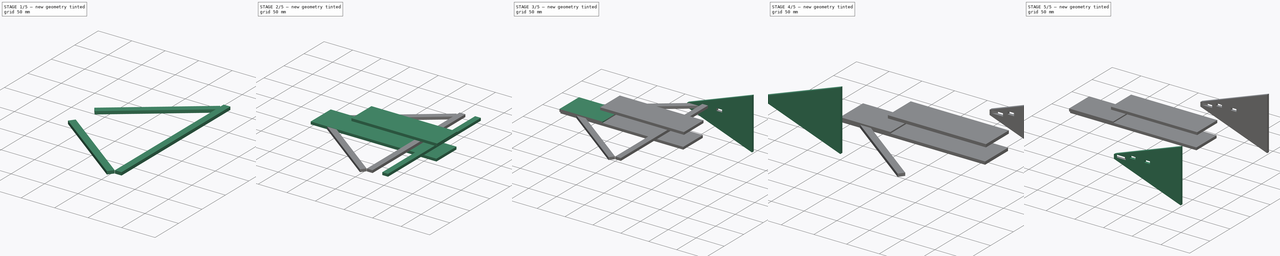
[diagram: build sequence overview — one tinted view per stage of 5, left to right]
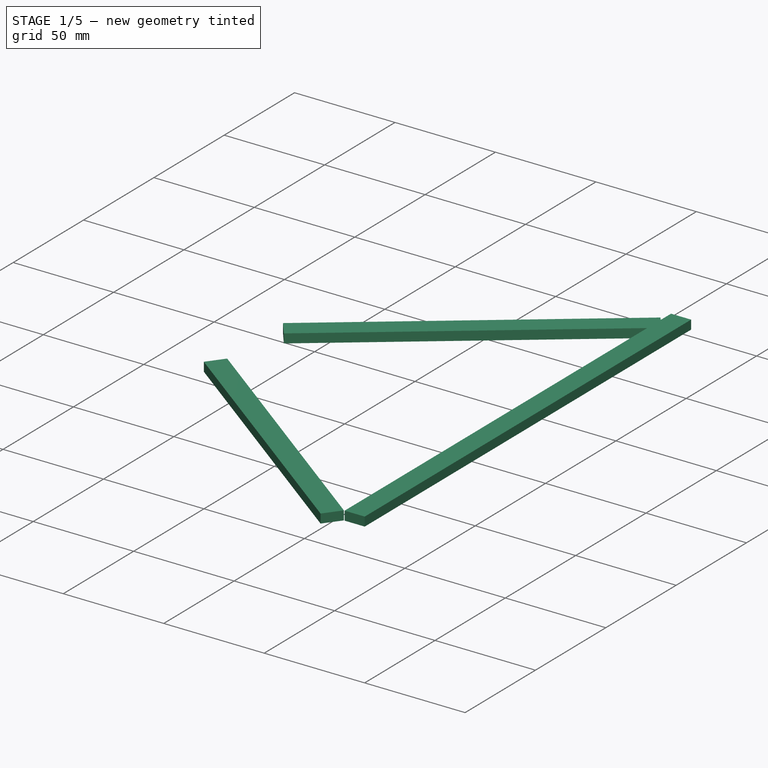
[diagram: stage 1 of 5 — iso view after this stage's code; geometry added in this stage tinted green]
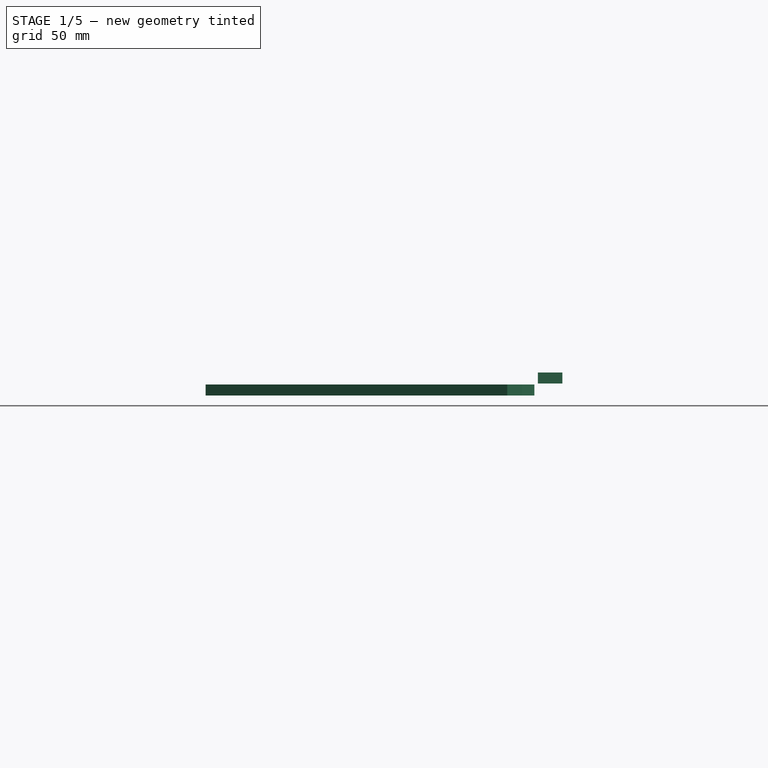
[diagram: stage 1 of 5 — front view after this stage's code; geometry added in this stage tinted green]
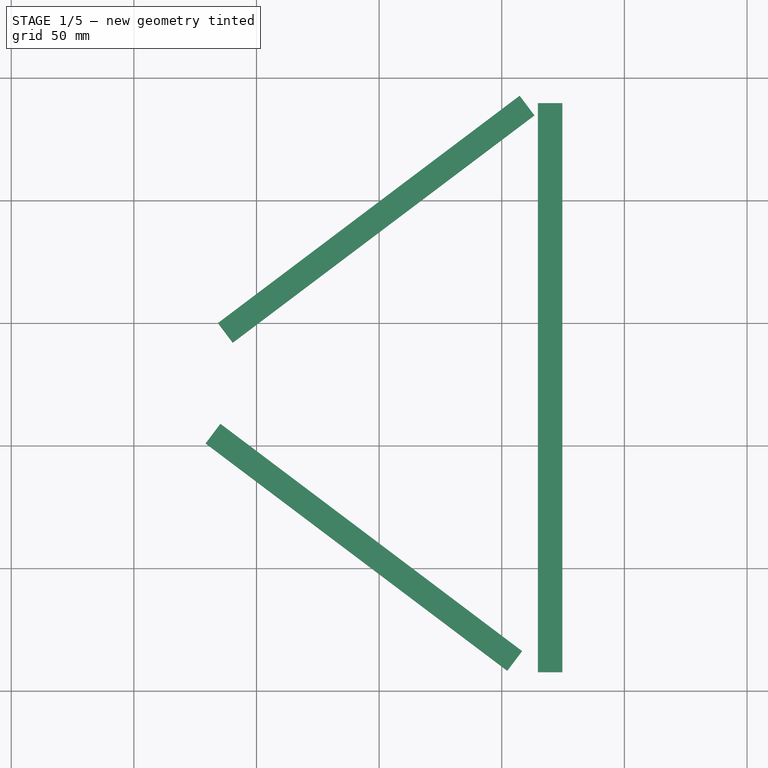
[diagram: stage 1 of 5 — top view after this stage's code; geometry added in this stage tinted green]
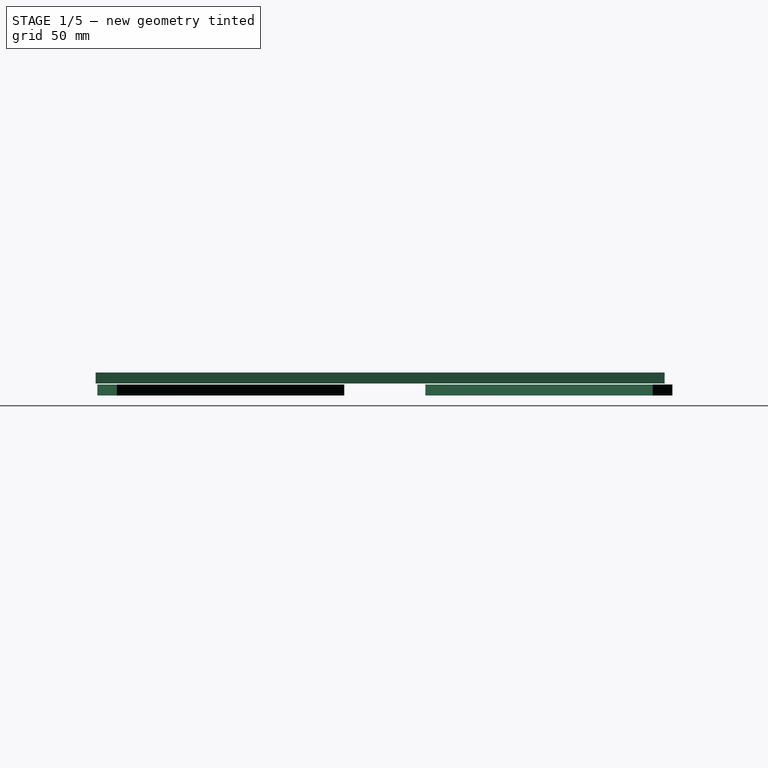
[diagram: stage 1 of 5 — right view after this stage's code; geometry added in this stage tinted green]
FCSTD DOCUMENT  (FreeCAD 0.20R29410 (Git))
Label: wingtest3
License: All rights reserved
LicenseURL: http://en.wikipedia.org/wiki/All_rights_reserved
objects: Part::Cut×36, Part::Part2DObjectPython×19, Part::FeaturePython×10, Part::Box×7, Sketcher::SketchObject×2, PartDesign::Pad×2, PartDesign::Body×2
note: 80 computed .brp shape members not serialized (recipe doc carries the construction recipe); baked Part::Feature solids carry a one-line shape summary decoded from their .brp

FEATURE [Part::Box] Box001  label="Cube001"
  AttacherType = Attacher::AttachEngine3D
  Height = 4.5
  Length = 10
  Placement = pos=(164.7,-92.4,2.5) rot=(0,0,1;0rad)
  Width = 232
FEATURE [Part::Box] Box005  label="left front spar"
  AttacherType = Attacher::AttachEngine3D
  Height = 4.5
  Length = 10
  Placement = pos=(152.247,-91.7224,-2.4) rot=(0,0,1;0.925025rad)
  Width = 154
FEATURE [Part::Box] Box006  label="front spar001"
  AttacherType = Attacher::AttachEngine3D
  Height = 4.5
  Length = 10
  Placement = pos=(34.2878,50.0325,-2.4) rot=(0,0,1;-0.925025rad)
  Width = 154
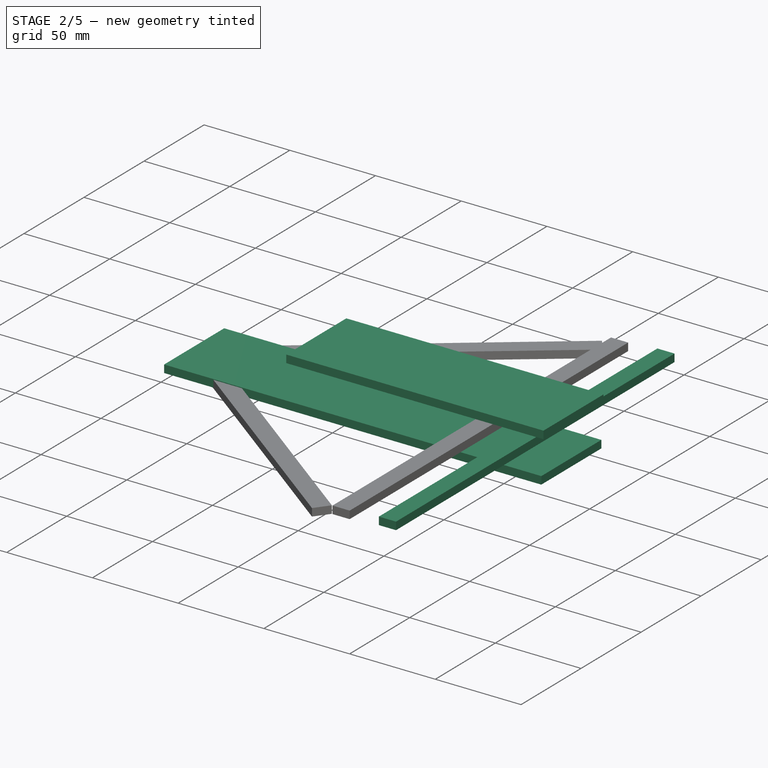
[diagram: stage 2 of 5 — iso view after this stage's code; geometry added in this stage tinted green]
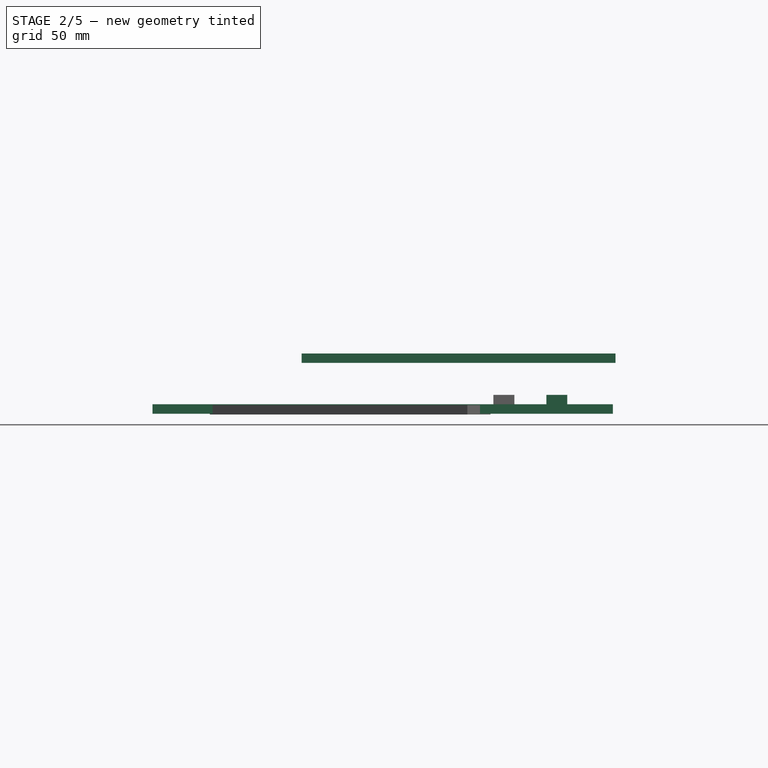
[diagram: stage 2 of 5 — front view after this stage's code; geometry added in this stage tinted green]
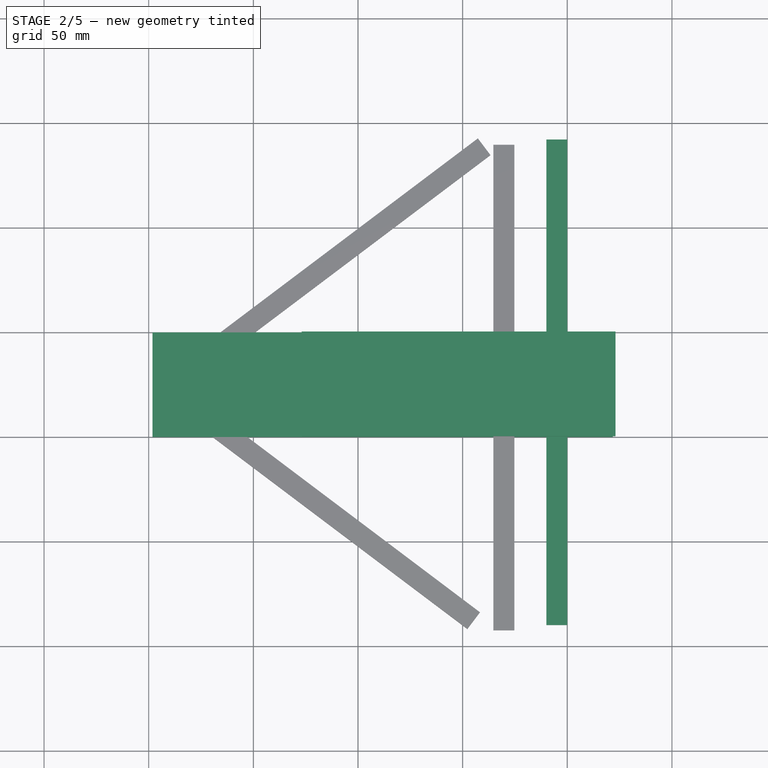
[diagram: stage 2 of 5 — top view after this stage's code; geometry added in this stage tinted green]
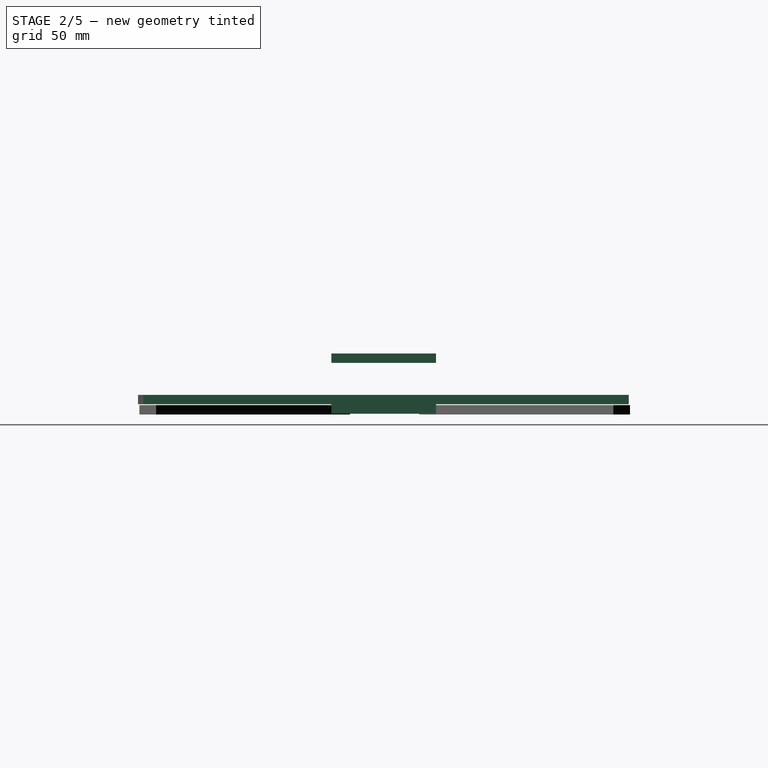
[diagram: stage 2 of 5 — right view after this stage's code; geometry added in this stage tinted green]
FEATURE [Part::FeaturePython] wrib  # WARN: FeaturePython — macro-defined, semantics opaque (R4)
  Chord = 250
  Coordinates = (101) [(1,0,-2.06341e-17),(0.999037,0,0.000309021),(0.996151,0,0.00123227),(0.991352,0,0.0027584),(0.984655,0,0.00486873),(0.976083,0,0.0075377),+95 more]
  NacaNbrPoint = 50
  NacaProfil = 4415
  RibProfil = 24112
  Thickness = 0
  finite_TE = false
  splitSpline = true
  useSpline = true
  wingkey = 0
FEATURE [Part::FeaturePython] wrib001  # WARN: FeaturePython — macro-defined, semantics opaque (R4)
  Chord = 250
  Coordinates = (101) [(1,0,-2.06341e-17),(0.999037,0,0.000309021),(0.996151,0,0.00123227),(0.991352,0,0.0027584),(0.984655,0,0.00486873),(0.976083,0,0.0075377),+95 more]
  NacaNbrPoint = 50
  NacaProfil = 4415
  Placement = pos=(0,50,0) rot=(1,0,0;0rad)
  RibProfil = 4415
  Thickness = 0
  finite_TE = false
  splitSpline = true
  useSpline = true
  wingkey = 0
FEATURE [Part::FeaturePython] wrib002  # WARN: FeaturePython — macro-defined, semantics opaque (R4)
  Chord = 200
  Coordinates = (101) [(1,0,-2.06341e-17),(0.999037,0,0.000309021),(0.996151,0,0.00123227),(0.991352,0,0.0027584),(0.984655,0,0.00486873),(0.976083,0,0.0075377),+95 more]
  NacaNbrPoint = 50
  NacaProfil = 4415
  Placement = pos=(50,70,0) rot=(1,0,0;0rad)
  RibProfil = 4415
  Thickness = 0
  finite_TE = false
  splitSpline = true
  useSpline = true
  wingkey = 0
FEATURE [Part::FeaturePython] wrib003  # WARN: FeaturePython — macro-defined, semantics opaque (R4)
  Chord = 200
  Coordinates = (101) [(1,0,-2.06341e-17),(0.999037,0,0.000309021),(0.996151,0,0.00123227),(0.991352,0,0.0027584),(0.984655,0,0.00486873),(0.976083,0,0.0075377),+95 more]
  NacaNbrPoint = 50
  NacaProfil = 4415
  Placement = pos=(50,-20,0) rot=(1,0,0;0rad)
  RibProfil = 4415
  Thickness = 0
  finite_TE = false
  splitSpline = true
  useSpline = true
  wingkey = 0
FEATURE [Part::FeaturePython] wrib004  # WARN: FeaturePython — macro-defined, semantics opaque (R4)
  Chord = 175
  Coordinates = (101) [(1,0,-2.06341e-17),(0.999037,0,0.000309021),(0.996151,0,0.00123227),(0.991352,0,0.0027584),(0.984655,0,0.00486873),(0.976083,0,0.0075377),+95 more]
  NacaNbrPoint = 50
  NacaProfil = 4415
  Placement = pos=(75,-40,-1) rot=(1,0,0;0rad)
  RibProfil = 4415
  Thickness = 0
  finite_TE = false
  splitSpline = true
  useSpline = true
  wingkey = 0
FEATURE [Part::FeaturePython] wrib005  # WARN: FeaturePython — macro-defined, semantics opaque (R4)
  Chord = 175
  Coordinates = (101) [(1,0,-2.06341e-17),(0.999037,0,0.000309021),(0.996151,0,0.00123227),(0.991352,0,0.0027584),(0.984655,0,0.00486873),(0.976083,0,0.0075377),+95 more]
  NacaNbrPoint = 50
  NacaProfil = 4415
  Placement = pos=(75,90,-1) rot=(1,0,0;0rad)
  RibProfil = 4415
  Thickness = 0
  finite_TE = false
  splitSpline = true
  useSpline = true
  wingkey = 0
FEATURE [Part::FeaturePython] wrib006  # WARN: FeaturePython — macro-defined, semantics opaque (R4)
  Chord = 150
  Coordinates = (101) [(1,0,-2.06341e-17),(0.999037,0,0.000309021),(0.996151,0,0.00123227),(0.991352,0,0.0027584),(0.984655,0,0.00486873),(0.976083,0,0.0075377),+95 more]
  NacaNbrPoint = 50
  NacaProfil = 4415
  Placement = pos=(100,110,0) rot=(1,0,0;0rad)
  RibProfil = 4415
  Thickness = 0
  finite_TE = false
  splitSpline = true
  useSpline = true
  wingkey = 0
FEATURE [Part::FeaturePython] wrib007  # WARN: FeaturePython — macro-defined, semantics opaque (R4)
  Chord = 150
  Coordinates = (101) [(1,0,-2.06341e-17),(0.999037,0,0.000309021),(0.996151,0,0.00123227),(0.991352,0,0.0027584),(0.984655,0,0.00486873),(0.976083,0,0.0075377),+95 more]
  NacaNbrPoint = 50
  NacaProfil = 4415
  Placement = pos=(100,-60,-2) rot=(1,0,0;0rad)
  RibProfil = 4415
  Thickness = 0
  finite_TE = false
  splitSpline = true
  useSpline = true
  wingkey = 0
FEATURE [Part::FeaturePython] wrib008  # WARN: FeaturePython — macro-defined, semantics opaque (R4)
  Chord = 125
  Coordinates = (101) [(1,0,-2.06341e-17),(0.999037,0,0.000309021),(0.996151,0,0.00123227),(0.991352,0,0.0027584),(0.984655,0,0.00486873),(0.976083,0,0.0075377),+95 more]
  NacaNbrPoint = 50
  NacaProfil = 4415
  Placement = pos=(125,-80,-4) rot=(1,0,0;0rad)
  RibProfil = 4415
  Thickness = 0
  finite_TE = false
  splitSpline = true
  useSpline = true
  wingkey = 0
FEATURE [Part::FeaturePython] wrib009  # WARN: FeaturePython — macro-defined, semantics opaque (R4)
  Chord = 125
  Coordinates = (101) [(1,0,-2.06341e-17),(0.999037,0,0.000309021),(0.996151,0,0.00123227),(0.991352,0,0.0027584),(0.984655,0,0.00486873),(0.976083,0,0.0075377),+95 more]
  NacaNbrPoint = 50
  NacaProfil = 4415
  Placement = pos=(125,130,-4) rot=(1,0,0;0rad)
  RibProfil = 4415
  Thickness = 0
  finite_TE = false
  splitSpline = true
  useSpline = true
  wingkey = 0
FEATURE [Part::Box] Box  label="Cube"
  AttacherType = Attacher::AttachEngine3D
  Height = 4.5
  Length = 10
  Placement = pos=(190,-89.9,2.5) rot=(0,0,1;0rad)
  Width = 232
FEATURE [PartDesign::Body] Body001  label="wing tip2"
  Group = -> [Sketch001,Pad001]
  Origin = -> Origin001
  Placement = pos=(250,135,-4) rot=(0,0,1;0rad)
  Tip = -> Pad001
FEATURE [Part::Box] Box002  label="fuselodge bottom"
  AttacherType = Attacher::AttachEngine3D
  Height = 4.5
  Length = 220
  Placement = pos=(1.8,0,-2) rot=(0,0,1;0rad)
  Width = 50
FEATURE [Part::Box] Box003  label="fuselodge top"
  AttacherType = Attacher::AttachEngine3D
  Height = 4.5
  Length = 150
  Placement = pos=(73.05,0,22.29) rot=(0,1,0;0rad)
  Width = 50
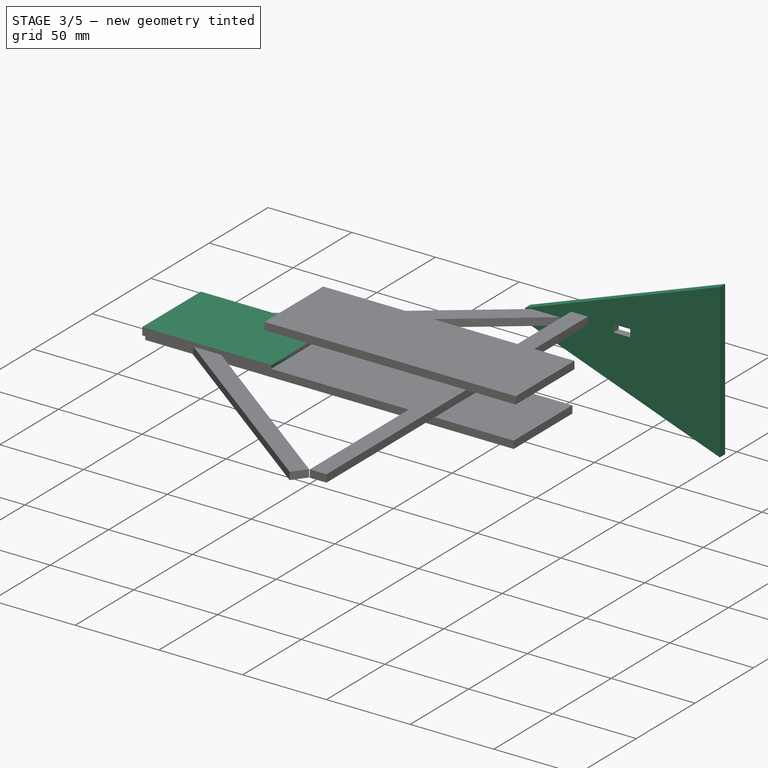
[diagram: stage 3 of 5 — iso view after this stage's code; geometry added in this stage tinted green]
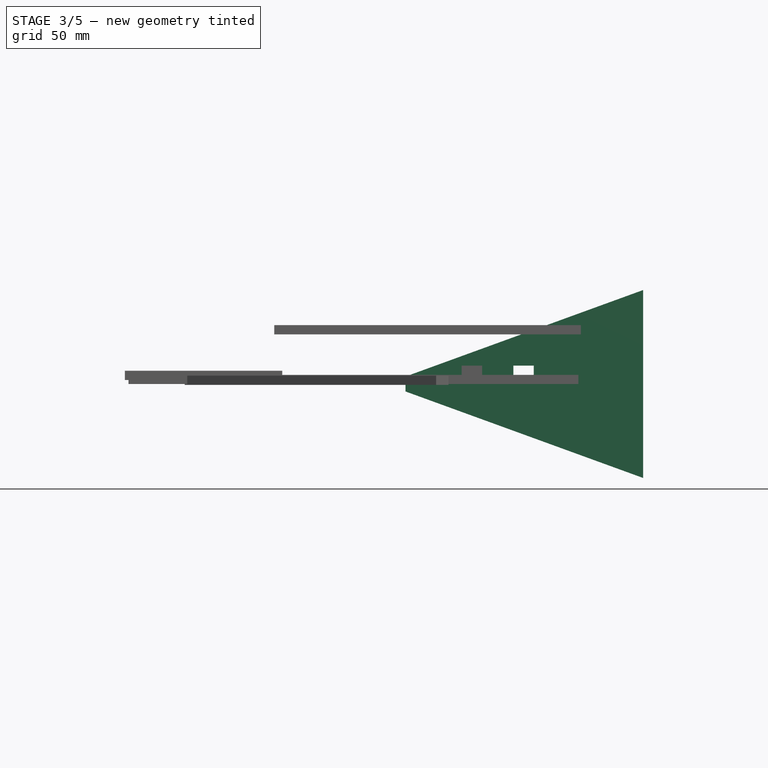
[diagram: stage 3 of 5 — front view after this stage's code; geometry added in this stage tinted green]
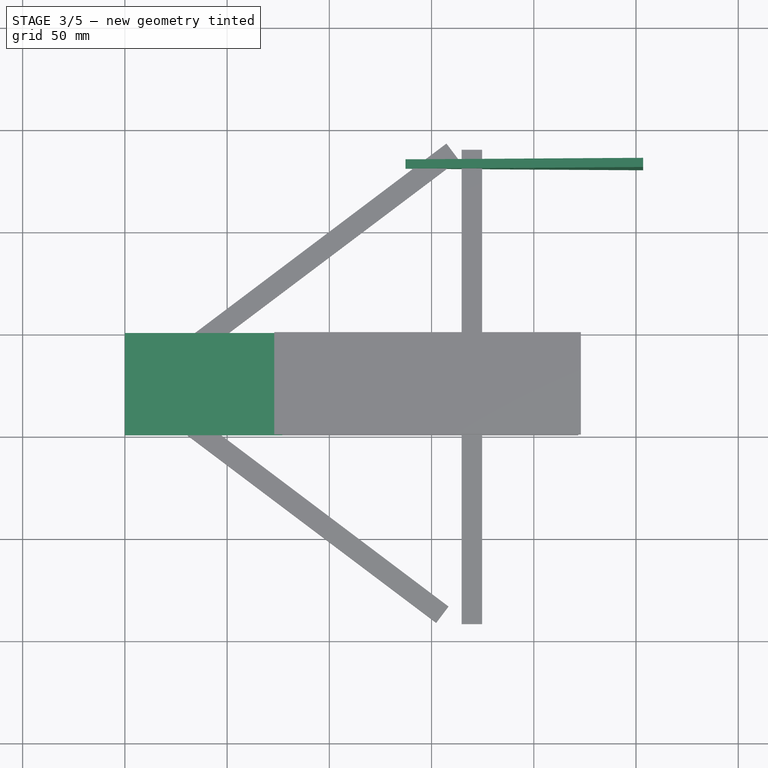
[diagram: stage 3 of 5 — top view after this stage's code; geometry added in this stage tinted green]
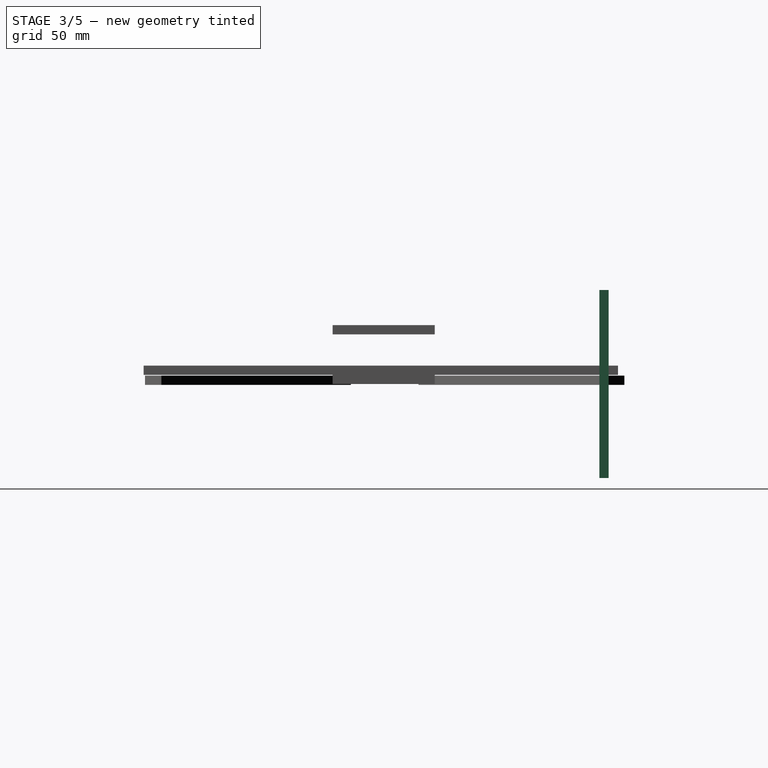
[diagram: stage 3 of 5 — right view after this stage's code; geometry added in this stage tinted green]
FEATURE [PartDesign::Body] Body  label="wing tip"
  Group = -> [Sketch,Pad]
  Origin = -> Origin
  Placement = pos=(250,-80,-4) rot=(0,0,1;0rad)
  Tip = -> Pad
FEATURE [Sketcher::SketchObject] Sketch001
  FullyConstrained = false
  MapMode = 5
  Placement = pos=(0,0,0) rot=(1,0,0;1.5708rad)
  Support = -> [XZ_Plane001]
  sketch-geometry (4):
    g0: LineSegment StartX=-112.767 StartY=5.66261 StartZ=0 EndX=-112.767 EndY=-1.62573 EndZ=0
    g1: LineSegment StartX=-112.767 StartY=-1.62573 StartZ=0 EndX=3.47314 EndY=-43.9336 EndZ=0
    g2: LineSegment StartX=3.47314 StartY=-43.9336 StartZ=0 EndX=3.47314 EndY=47.9705 EndZ=0
    g3: LineSegment StartX=3.47314 StartY=47.9705 StartZ=0 EndX=-112.767 EndY=5.66261 EndZ=0
  constraints (8):
    c: Vertical(g0)
    c: Coincident(g0,g1)
    c: Coincident(g1,g2)
    c: Vertical(g2)
    c: Coincident(g2,g3)
    c: Coincident(g3,g0)
    c: Angle(g3,g2) = 1.22173
    c: Angle(g2,g1) = 1.22173
FEATURE [PartDesign::Pad] Pad001
  Direction = (0,-1,2e-16)
  Length = 4.5
  Length2 = 10
  Placement = pos=(0,0,0) rot=(1,0,0;1.5708rad)
  Profile = -> Sketch001
  ReferenceAxis = -> Sketch001 [N_Axis]
  Type = 0
FEATURE [Part::Box] Box004  label="fuselodge front"
  AttacherType = Attacher::AttachEngine3D
  Height = 4.5
  Length = 77
  Width = 50
FEATURE [Part::Cut] Cut011
  Base = -> Body001
  Tool = -> Box
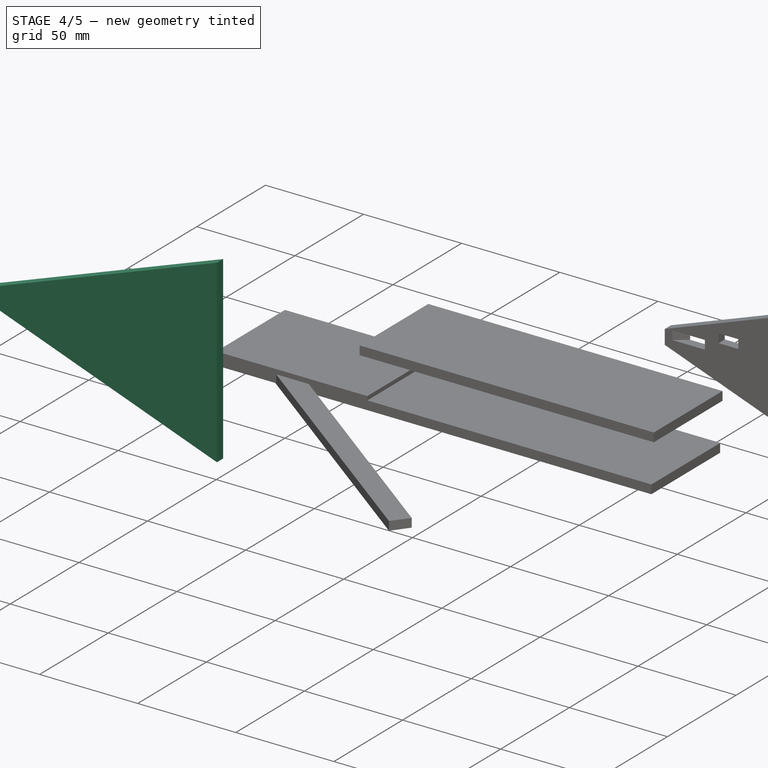
[diagram: stage 4 of 5 — iso view after this stage's code; geometry added in this stage tinted green]
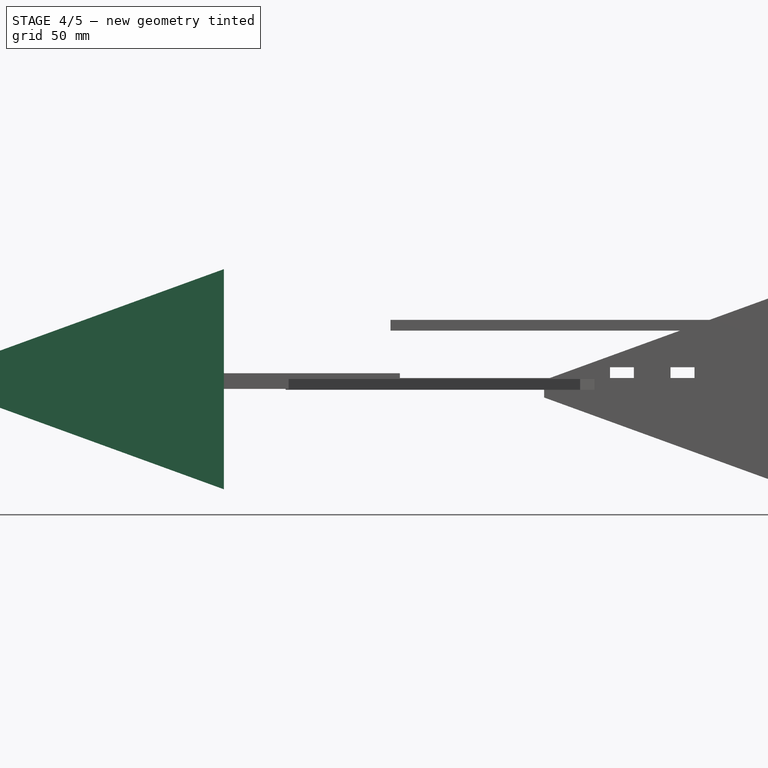
[diagram: stage 4 of 5 — front view after this stage's code; geometry added in this stage tinted green]
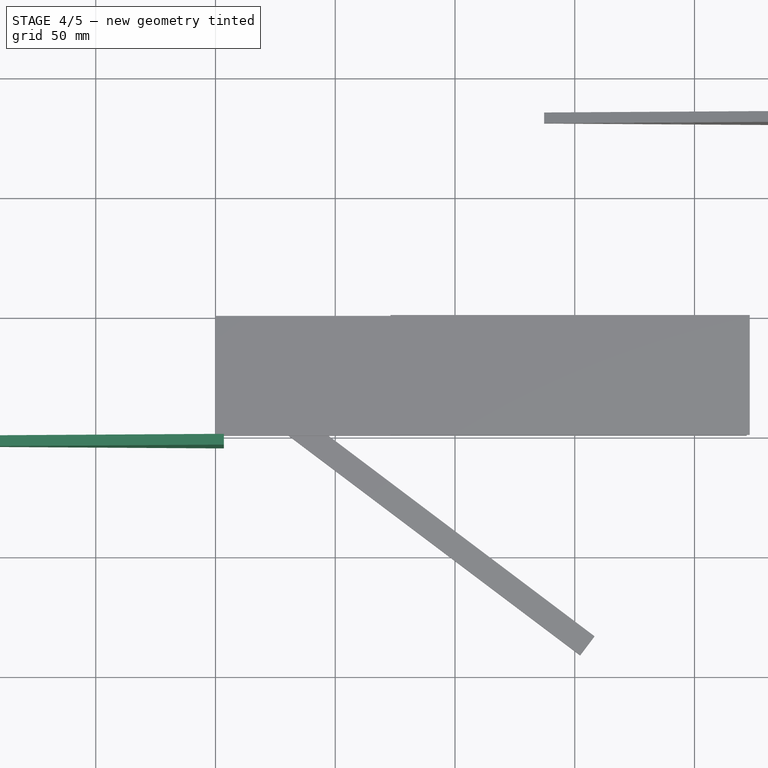
[diagram: stage 4 of 5 — top view after this stage's code; geometry added in this stage tinted green]
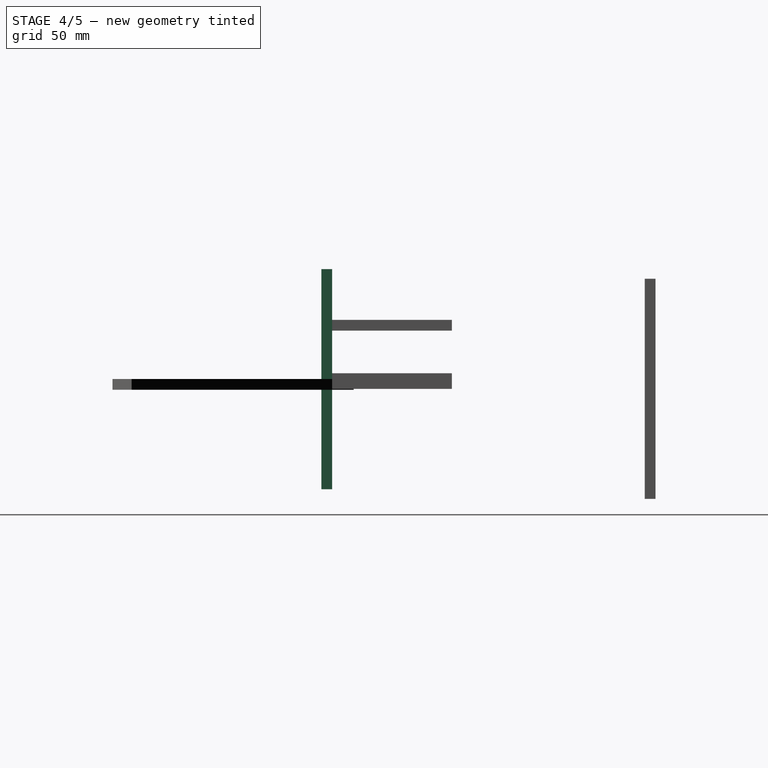
[diagram: stage 4 of 5 — right view after this stage's code; geometry added in this stage tinted green]
FEATURE [Sketcher::SketchObject] Sketch
  FullyConstrained = false
  MapMode = 5
  Placement = pos=(0,0,0) rot=(1,0,0;1.5708rad)
  Support = -> [XZ_Plane]
  sketch-geometry (4):
    g0: LineSegment StartX=-112.767 StartY=5.66261 StartZ=0 EndX=-112.767 EndY=-1.62573 EndZ=0
    g1: LineSegment StartX=-112.767 StartY=-1.62573 StartZ=0 EndX=3.47314 EndY=-43.9336 EndZ=0
    g2: LineSegment StartX=3.47314 StartY=-43.9336 StartZ=0 EndX=3.47314 EndY=47.9705 EndZ=0
    g3: LineSegment StartX=3.47314 StartY=47.9705 StartZ=0 EndX=-112.767 EndY=5.66261 EndZ=0
  constraints (8):
    c: Vertical(g0)
    c: Coincident(g0,g1)
    c: Coincident(g1,g2)
    c: Vertical(g2)
    c: Coincident(g2,g3)
    c: Coincident(g3,g0)
    c: Angle(g3,g2) = 1.22173
    c: Angle(g2,g1) = 1.22173
FEATURE [PartDesign::Pad] Pad
  Direction = (0,-1,2e-16)
  Length = 4.5
  Length2 = 10
  Placement = pos=(0,0,0) rot=(1,0,0;1.5708rad)
  Profile = -> Sketch
  ReferenceAxis = -> Sketch [N_Axis]
  Type = 0
FEATURE [Part::Cut] Cut023  label="RTip"
  Base = -> Cut011
  Tool = -> Box001
FEATURE [Part::Cut] Cut030  label="R006"
  Base = -> Cut013
  Tool = -> Box006
FEATURE [Part::Cut] Cut031
  Base = -> Cut014
  Tool = -> Box006
FEATURE [Part::Cut] Cut032
  Base = -> Cut017
  Tool = -> Box006
FEATURE [Part::Cut] Cut033
  Base = -> Cut018
  Tool = -> Box006
FEATURE [Part::Cut] Cut034
  Base = -> Cut021
  Tool = -> Box006
FEATURE [Part::Cut] Cut035
  Base = -> Cut023
  Tool = -> Box006
FEATURE [Part::Part2DObjectPython] Shape2DView  # Draft 2D object (typed FeaturePython)
  AutoUpdate = true
  Base = -> Cut024
  Clip = false
  FuseArch = false
  HiddenLines = false
  InPlace = true
  OnlySolids = false
  Placement = pos=(-259.338,105.946,-84.7601) rot=(0,0,1;0rad)
  Projection = (-8.74228e-08,1,0)
  ProjectionMode = 0
  SegmentLength = 0.05
  Tessellation = false
  VisibleOnly = false
FEATURE [Part::Part2DObjectPython] Shape2DView001  # Draft 2D object (typed FeaturePython)
  AutoUpdate = true
  Base = -> Cut025
  Clip = false
  FuseArch = false
  HiddenLines = false
  InPlace = true
  OnlySolids = false
  Placement = pos=(-280.136,144.788,-100.673) rot=(0,0,1;0rad)
  Projection = (-8.74228e-08,1,0)
  ProjectionMode = 0
  SegmentLength = 0.05
  Tessellation = false
  VisibleOnly = false
FEATURE [Part::Part2DObjectPython] Shape2DView002  # Draft 2D object (typed FeaturePython)
  AutoUpdate = true
  Base = -> Cut026
  Clip = false
  FuseArch = false
  HiddenLines = false
  InPlace = true
  OnlySolids = false
  Placement = pos=(-283.616,175.823,-110.706) rot=(0,0,1;0rad)
  Projection = (-8.74228e-08,1,0)
  ProjectionMode = 0
  SegmentLength = 0.05
  Tessellation = false
  VisibleOnly = false
FEATURE [Part::Part2DObjectPython] Shape2DView003  # Draft 2D object (typed FeaturePython)
  AutoUpdate = true
  Base = -> Cut027
  Clip = false
  FuseArch = false
  HiddenLines = false
  InPlace = true
  OnlySolids = false
  Placement = pos=(-284.381,208.004,-120.529) rot=(0,0,1;0rad)
  Projection = (-8.74228e-08,1,0)
  ProjectionMode = 0
  SegmentLength = 0.05
  Tessellation = false
  VisibleOnly = false
FEATURE [Part::Part2DObjectPython] Shape2DView004  # Draft 2D object (typed FeaturePython)
  AutoUpdate = true
  Base = -> Cut028
  Clip = false
  FuseArch = false
  HiddenLines = false
  InPlace = true
  OnlySolids = false
  Placement = pos=(-292.7,233.217,-129.8) rot=(0,0,1;0rad)
  Projection = (-8.74228e-08,1,0)
  ProjectionMode = 0
  SegmentLength = 0.05
  Tessellation = false
  VisibleOnly = false
FEATURE [Part::Part2DObjectPython] Shape2DView005  # Draft 2D object (typed FeaturePython)
  AutoUpdate = true
  Base = -> Cut029
  Clip = false
  FuseArch = false
  HiddenLines = false
  InPlace = true
  OnlySolids = false
  Placement = pos=(-291.511,32.6459,-69.3087) rot=(0,0,1;0rad)
  Projection = (-8.74228e-08,1,0)
  ProjectionMode = 0
  SegmentLength = 0.05
  Tessellation = false
  VisibleOnly = false
FEATURE [Part::Part2DObjectPython] Shape2DView006  # Draft 2D object (typed FeaturePython)
  AutoUpdate = true
  Base = -> Cut030
  Clip = false
  FuseArch = false
  HiddenLines = false
  InPlace = true
  OnlySolids = false
  Placement = pos=(-519.326,111.747,-69.3087) rot=(0,0,1;0rad)
  Projection = (-8.74228e-08,1,0)
  ProjectionMode = 0
  SegmentLength = 0.05
  Tessellation = false
  VisibleOnly = false
FEATURE [Part::Part2DObjectPython] Shape2DView007  # Draft 2D object (typed FeaturePython)
  AutoUpdate = true
  Base = -> Cut031
  Clip = false
  FuseArch = false
  HiddenLines = false
  InPlace = true
  OnlySolids = false
  Placement = pos=(-487.063,151.321,-69.3087) rot=(0,0,1;0rad)
  Projection = (-8.74228e-08,1,0)
  ProjectionMode = 0
  SegmentLength = 0.05
  Tessellation = false
  VisibleOnly = false
FEATURE [Part::Part2DObjectPython] Shape2DView008  # Draft 2D object (typed FeaturePython)
  AutoUpdate = true
  Base = -> Cut032
  Clip = false
  FuseArch = false
  HiddenLines = false
  InPlace = true
  OnlySolids = false
  Placement = pos=(-462.433,180.43,-69.3087) rot=(0,0,1;0rad)
  Projection = (-8.74228e-08,1,0)
  ProjectionMode = 0
  SegmentLength = 0.05
  Tessellation = false
  VisibleOnly = false
FEATURE [Part::Part2DObjectPython] Shape2DView009  # Draft 2D object (typed FeaturePython)
  AutoUpdate = true
  Base = -> Cut033
  Clip = false
  FuseArch = false
  HiddenLines = false
  InPlace = true
  OnlySolids = false
  Placement = pos=(-438.548,214.017,-69.3087) rot=(0,0,1;0rad)
  Projection = (-8.74228e-08,1,0)
  ProjectionMode = 0
  SegmentLength = 0.05
  Tessellation = false
  VisibleOnly = false
FEATURE [Part::Part2DObjectPython] Shape2DView010  # Draft 2D object (typed FeaturePython)
  AutoUpdate = true
  Base = -> Cut034
  Clip = false
  FuseArch = false
  HiddenLines = false
  InPlace = true
  OnlySolids = false
  Placement = pos=(-422.874,237.155,-69.3087) rot=(0,0,1;0rad)
  Projection = (-8.74228e-08,1,0)
  ProjectionMode = 0
  SegmentLength = 0.05
  Tessellation = false
  VisibleOnly = false
FEATURE [Part::Part2DObjectPython] Shape2DView011  # Draft 2D object (typed FeaturePython)
  AutoUpdate = true
  Base = -> Cut035
  Clip = false
  FuseArch = false
  HiddenLines = false
  InPlace = true
  OnlySolids = false
  Placement = pos=(-534.086,46.0808,-69.3087) rot=(0,0,1;0rad)
  Projection = (-8.74228e-08,1,0)
  ProjectionMode = 0
  SegmentLength = 0.05
  Tessellation = false
  VisibleOnly = false
FEATURE [Part::Part2DObjectPython] Shape2DView012  # Draft 2D object (typed FeaturePython)
  AutoUpdate = true
  Base = -> Box004
  Clip = false
  FuseArch = false
  HiddenLines = false
  InPlace = true
  OnlySolids = false
  Placement = pos=(-262.966,12.4891,0) rot=(0,0,1;0rad)
  Projection = (0,0,1)
  ProjectionMode = 0
  SegmentLength = 0.05
  Tessellation = false
  VisibleOnly = false
FEATURE [Part::Part2DObjectPython] Shape2DView013  # Draft 2D object (typed FeaturePython)
  AutoUpdate = true
  Base = -> Box003
  Clip = false
  FuseArch = false
  HiddenLines = false
  InPlace = true
  OnlySolids = false
  Placement = pos=(-584.281,202.833,0) rot=(0,0,1;0rad)
  Projection = (0,0,1)
  ProjectionMode = 0
  SegmentLength = 0.05
  Tessellation = false
  VisibleOnly = false
FEATURE [Part::Part2DObjectPython] Shape2DView014  # Draft 2D object (typed FeaturePython)
  AutoUpdate = true
  Base = -> Box002
  Clip = false
  FuseArch = false
  HiddenLines = false
  InPlace = true
  OnlySolids = false
  Placement = pos=(-631.43,17.728,0) rot=(0,0,1;0rad)
  Projection = (0,0,1)
  ProjectionMode = 0
  SegmentLength = 0.05
  Tessellation = false
  VisibleOnly = false
FEATURE [Part::Part2DObjectPython] Shape2DView015  # Draft 2D object (typed FeaturePython)
  AutoUpdate = true
  Base = -> Box
  Clip = false
  FuseArch = false
  HiddenLines = false
  InPlace = true
  OnlySolids = false
  Placement = pos=(-263.691,286.507,0) rot=(0,0,1;1.56162rad)
  Projection = (0,0,1)
  ProjectionMode = 0
  SegmentLength = 0.05
  Tessellation = false
  VisibleOnly = false
FEATURE [Part::Part2DObjectPython] Shape2DView016  # Draft 2D object (typed FeaturePython)
  AutoUpdate = true
  Base = -> Box001
  Clip = false
  FuseArch = false
  HiddenLines = false
  InPlace = true
  OnlySolids = false
  Placement = pos=(-212.788,-10.6411,0) rot=(0,0,1;4.70534rad)
  Projection = (0,0,1)
  ProjectionMode = 0
  SegmentLength = 0.05
  Tessellation = false
  VisibleOnly = false
FEATURE [Part::Part2DObjectPython] Shape2DView017  # Draft 2D object (typed FeaturePython)
  AutoUpdate = true
  Base = -> Box005
  Clip = false
  FuseArch = false
  HiddenLines = false
  InPlace = true
  OnlySolids = false
  Placement = pos=(-392.636,245.288,0) rot=(0,0,1;0.641838rad)
  Projection = (0,0,1)
  ProjectionMode = 0
  SegmentLength = 0.05
  Tessellation = false
  VisibleOnly = false
FEATURE [Part::Part2DObjectPython] Shape2DView018  # Draft 2D object (typed FeaturePython)
  AutoUpdate = true
  Base = -> Box006
  Clip = false
  FuseArch = false
  HiddenLines = false
  InPlace = true
  OnlySolids = false
  Placement = pos=(6.19645,281.275,0) rot=(0,0,1;2.48997rad)
  Projection = (0,0,1)
  ProjectionMode = 0
  SegmentLength = 0.05
  Tessellation = false
  VisibleOnly = false
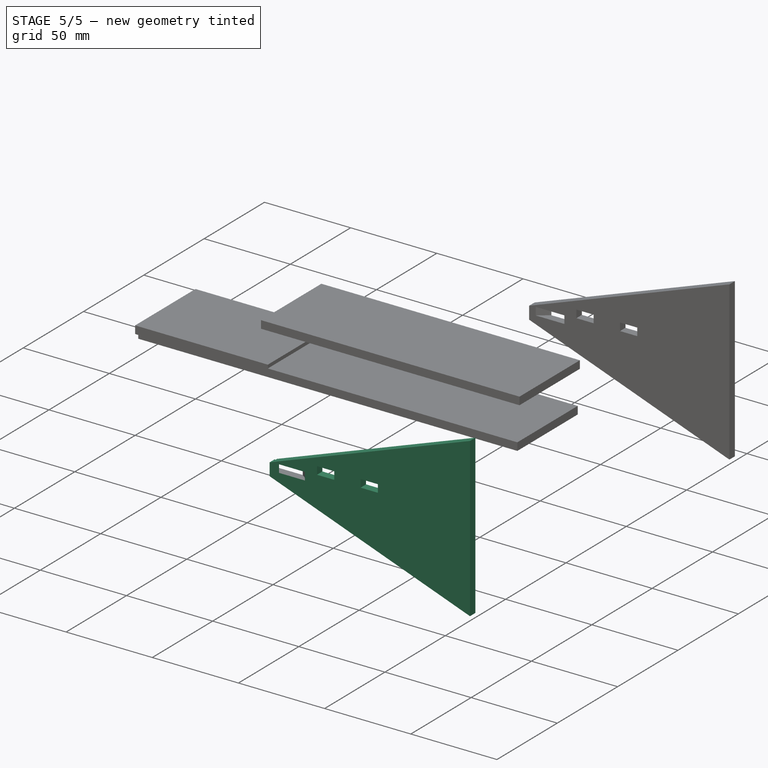
[diagram: stage 5 of 5 — iso view after this stage's code; geometry added in this stage tinted green]
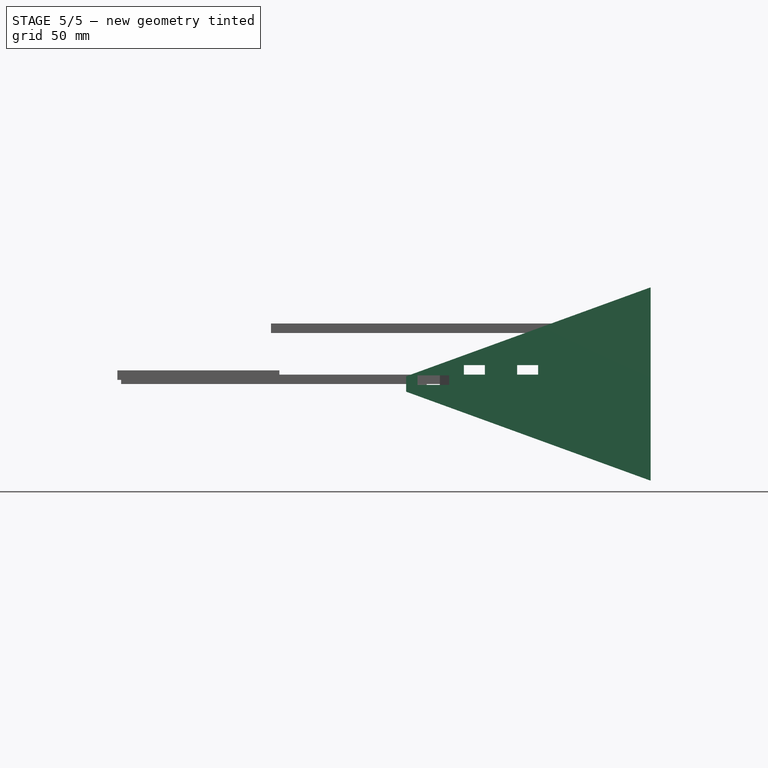
[diagram: stage 5 of 5 — front view after this stage's code; geometry added in this stage tinted green]
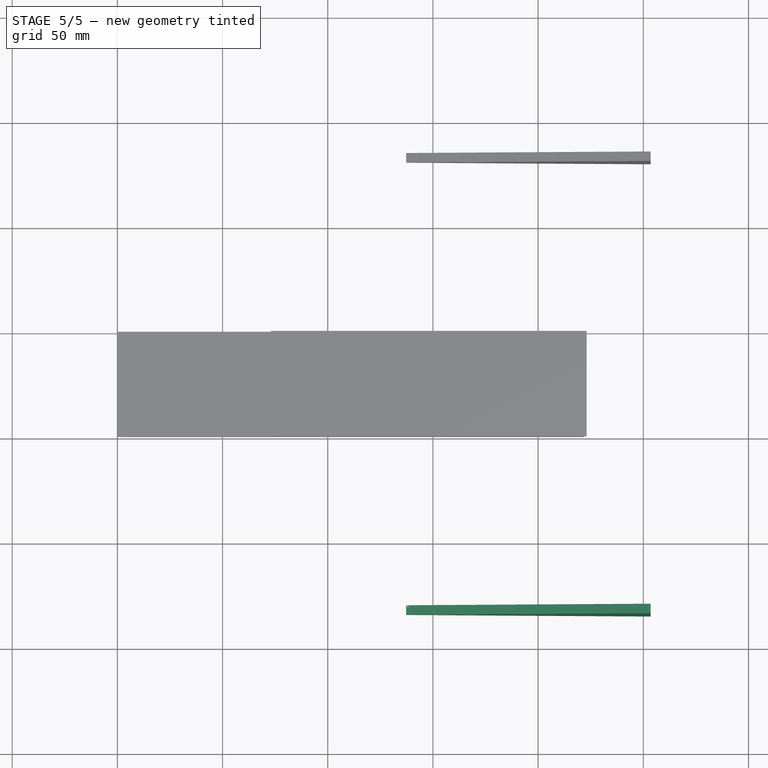
[diagram: stage 5 of 5 — top view after this stage's code; geometry added in this stage tinted green]
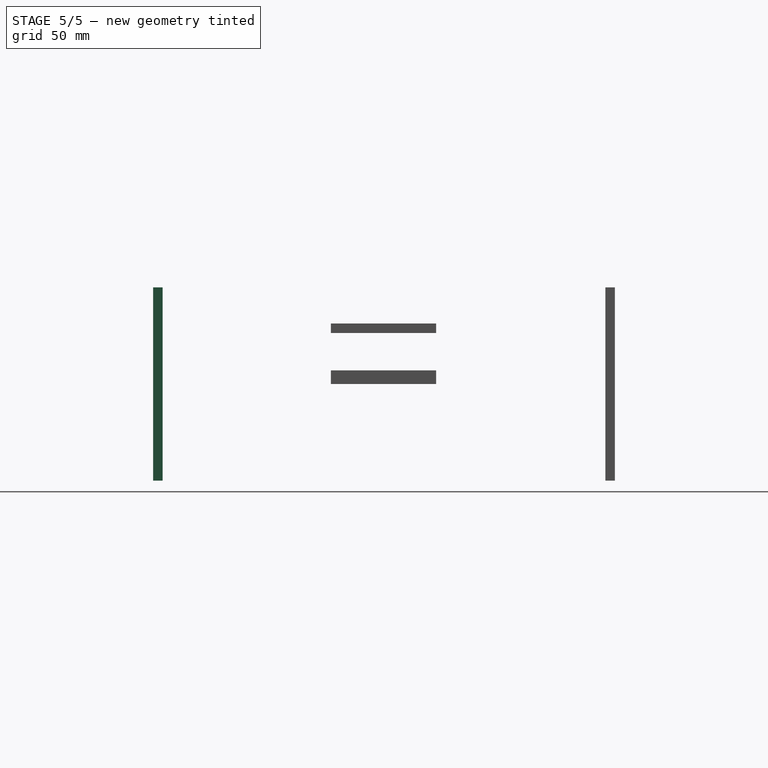
[diagram: stage 5 of 5 — right view after this stage's code; geometry added in this stage tinted green]
FEATURE [Part::Cut] Cut
  Base = -> wrib
  Tool = -> Box
FEATURE [Part::Cut] Cut001
  Base = -> wrib001
  Tool = -> Box
FEATURE [Part::Cut] Cut002
  Base = -> wrib002
  Tool = -> Box
FEATURE [Part::Cut] Cut003
  Base = -> wrib003
  Tool = -> Box
FEATURE [Part::Cut] Cut004
  Base = -> wrib004
  Tool = -> Box
FEATURE [Part::Cut] Cut005
  Base = -> wrib005
  Tool = -> Box
FEATURE [Part::Cut] Cut006
  Base = -> wrib006
  Tool = -> Box
FEATURE [Part::Cut] Cut007
  Base = -> wrib007
  Tool = -> Box
FEATURE [Part::Cut] Cut008
  Base = -> wrib008
  Tool = -> Box
FEATURE [Part::Cut] Cut009
  Base = -> wrib009
  Tool = -> Box
FEATURE [Part::Cut] Cut010
  Base = -> Body
  Tool = -> Box
FEATURE [Part::Cut] Cut012  label="L1"
  Base = -> Cut
  Tool = -> Box001
FEATURE [Part::Cut] Cut013  label="R1"
  Base = -> Cut001
  Tool = -> Box001
FEATURE [Part::Cut] Cut014  label="R2"
  Base = -> Cut002
  Tool = -> Box001
FEATURE [Part::Cut] Cut015  label="L2"
  Base = -> Cut003
  Tool = -> Box001
FEATURE [Part::Cut] Cut016  label="L3"
  Base = -> Cut004
  Tool = -> Box001
FEATURE [Part::Cut] Cut017  label="R3"
  Base = -> Cut005
  Tool = -> Box001
FEATURE [Part::Cut] Cut018  label="R4"
  Base = -> Cut006
  Tool = -> Box001
FEATURE [Part::Cut] Cut019  label="L4"
  Base = -> Cut007
  Tool = -> Box001
FEATURE [Part::Cut] Cut020  label="L5"
  Base = -> Cut008
  Tool = -> Box001
FEATURE [Part::Cut] Cut021  label="R5"
  Base = -> Cut009
  Tool = -> Box001
FEATURE [Part::Cut] Cut022  label="L tip"
  Base = -> Cut010
  Tool = -> Box001
FEATURE [Part::Cut] Cut024
  Base = -> Cut012
  Tool = -> Box005
FEATURE [Part::Cut] Cut025
  Base = -> Cut015
  Tool = -> Box005
FEATURE [Part::Cut] Cut026
  Base = -> Cut016
  Tool = -> Box005
FEATURE [Part::Cut] Cut027
  Base = -> Cut019
  Tool = -> Box005
FEATURE [Part::Cut] Cut028
  Base = -> Cut020
  Tool = -> Box005
FEATURE [Part::Cut] Cut029
  Base = -> Cut022
  Tool = -> Box005
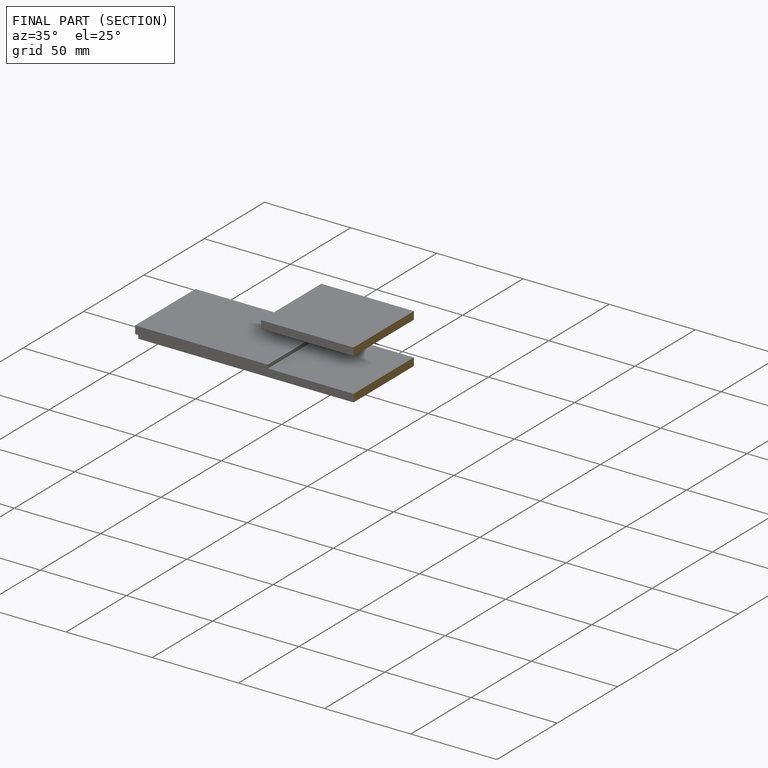
[diagram: finished part — half-section view (interior)]
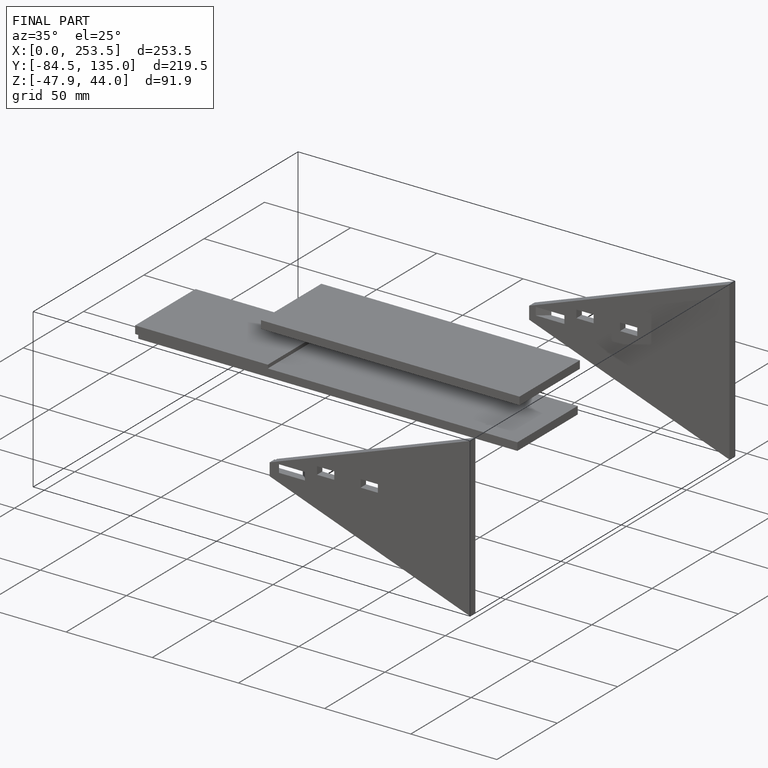
[diagram: finished part — iso view with bounding-box wireframe]
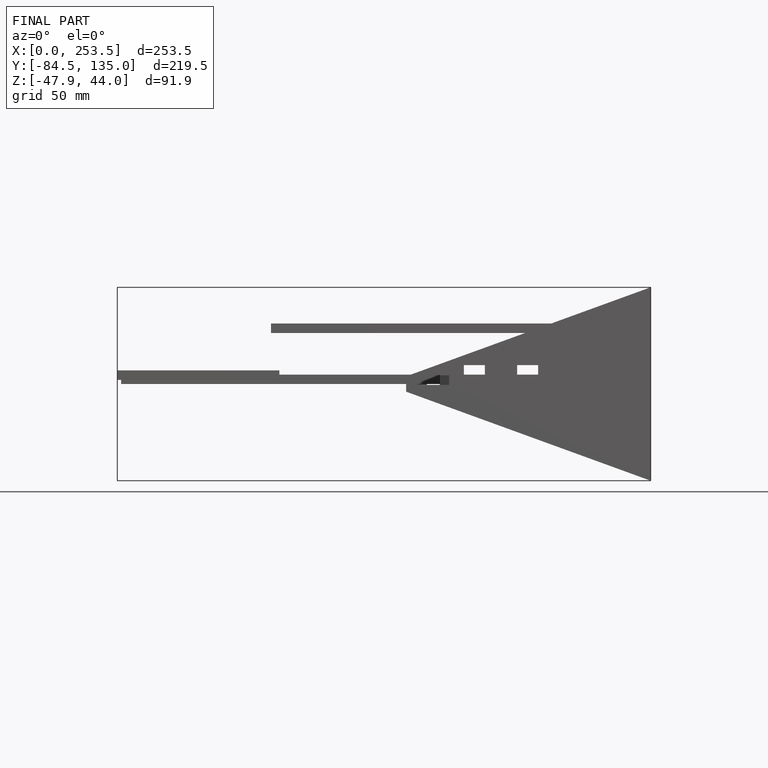
[diagram: finished part — front view with bounding-box wireframe]
